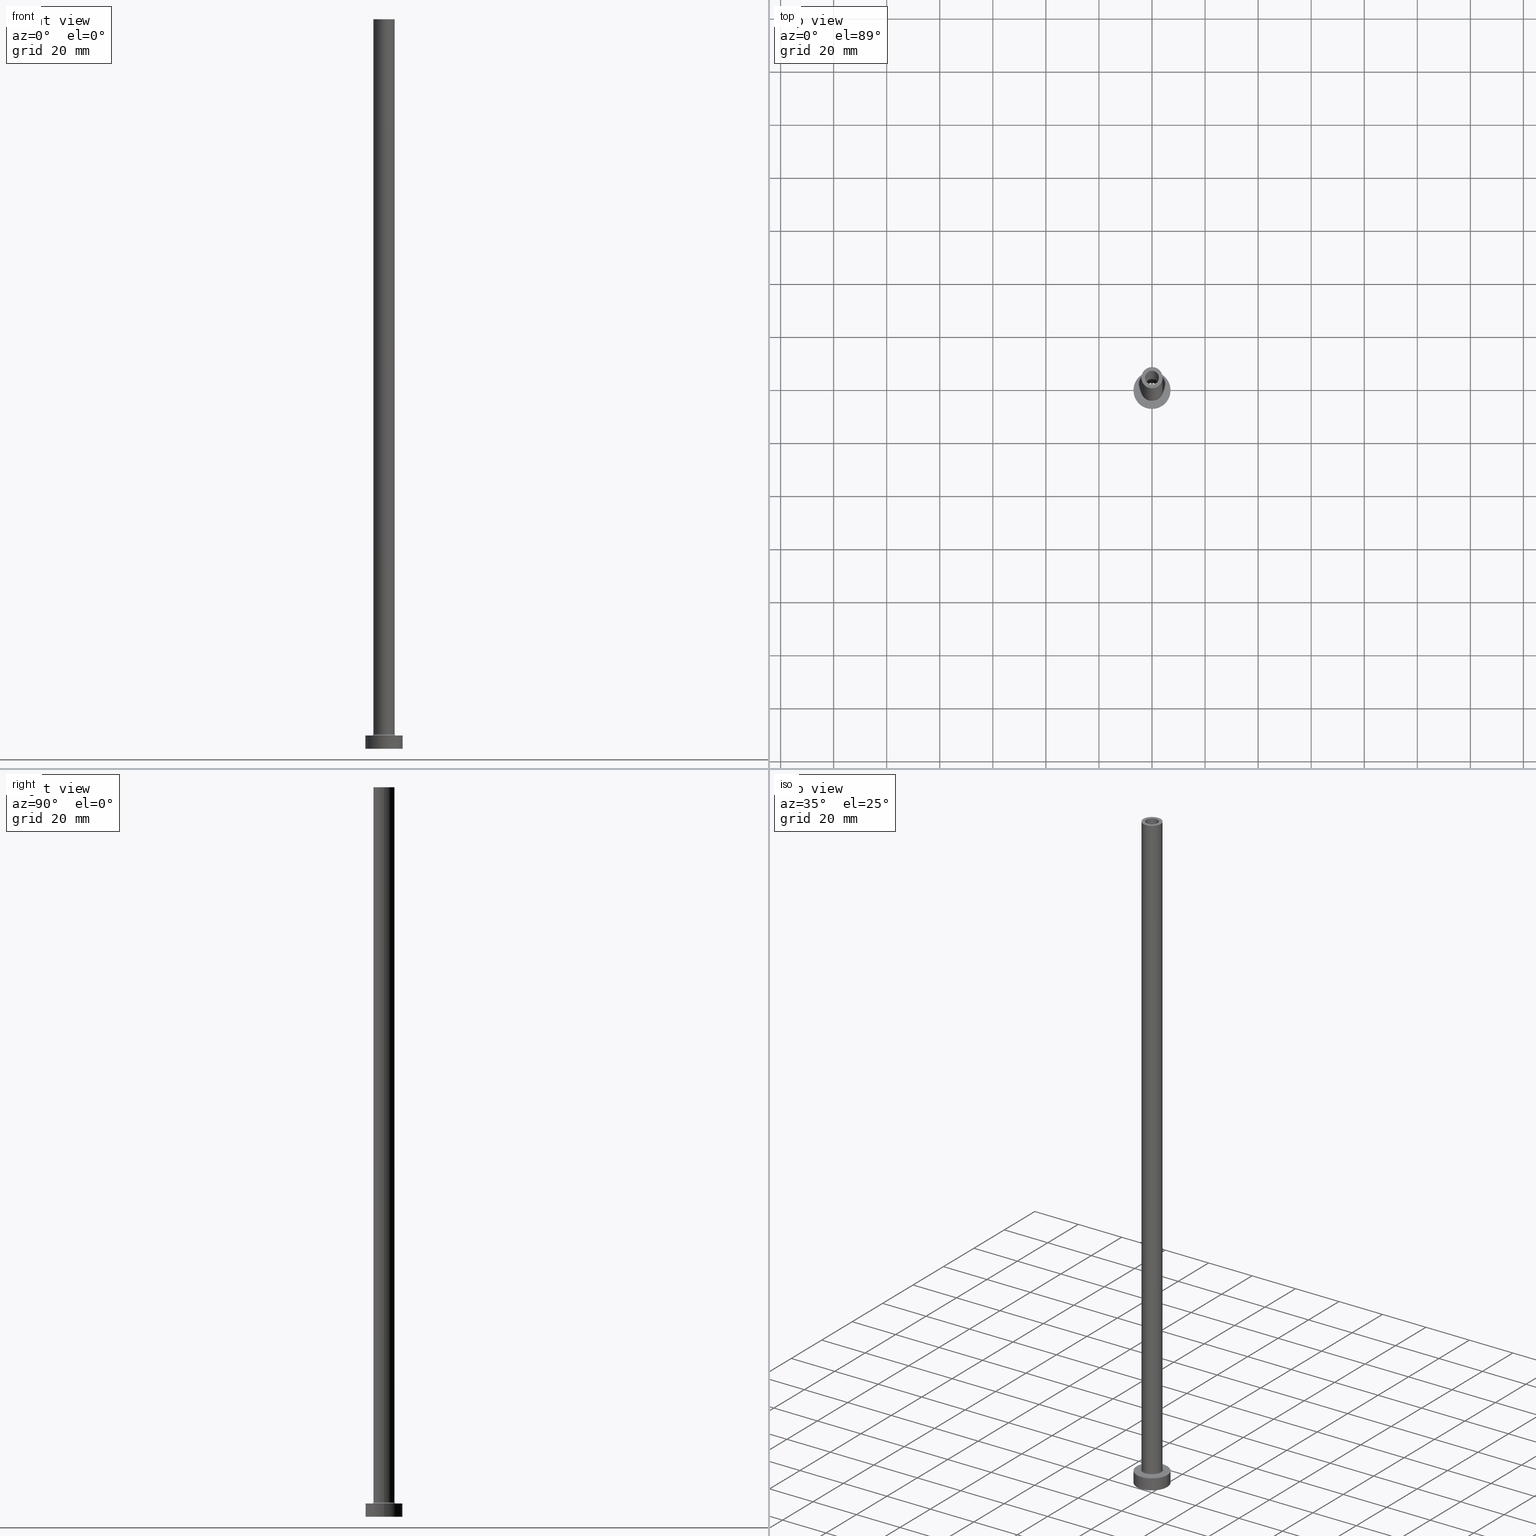
[diagram: canonical four-view strip — front | top / right | iso, engineering-drawing reading convention]
A machine part, canonical four-view strip (front | top / right | iso — engineering-drawing reading convention). The complete STEP part file that produces these views, byte-faithful:
ISO-10303-21;
HEADER;
FILE_DESCRIPTION (( 'STEP AP203' ),
    '1' );
FILE_NAME ('c31c.STEP',
    '2023-02-13T16:29:55',
    ( '' ),
    ( '' ),
    'SwSTEP 2.0',
    'SolidWorks 2019',
    '' );
FILE_SCHEMA (( 'CONFIG_CONTROL_DESIGN' ));
ENDSEC;

DATA;
#1 = CARTESIAN_POINT ( 'NONE',  ( 0.000000000000000000, 0.000000000000000000, 0.000000000000000000 ) ) ;
#2 = VERTEX_POINT ( 'NONE', #423 ) ;
#3 = DIRECTION ( 'NONE',  ( 0.000000000000000000, 0.000000000000000000, -1.000000000000000000 ) ) ;
#4 = CARTESIAN_POINT ( 'NONE',  ( -7.000000000000000000, 0.000000000000000000, 5.000000000000000000 ) ) ;
#5 = EDGE_CURVE ( 'NONE', #356, #18, #270, .T. ) ;
#6 = VERTEX_POINT ( 'NONE', #460 ) ;
#7 = DIRECTION ( 'NONE',  ( -1.000000000000000000, 0.000000000000000000, 0.000000000000000000 ) ) ;
#8 = ORIENTED_EDGE ( 'NONE', *, *, #402, .F. ) ;
#9 = EDGE_LOOP ( 'NONE', ( #355, #163, #395, #287 ) ) ;
#10 = AXIS2_PLACEMENT_3D ( 'NONE', #327, #81, #257 ) ;
#11 = DIRECTION ( 'NONE',  ( -0.000000000000000000, -0.000000000000000000, -1.000000000000000000 ) ) ;
#12 = EDGE_CURVE ( 'NONE', #133, #141, #131, .T. ) ;
#13 = DIRECTION ( 'NONE',  ( 1.000000000000000000, 0.000000000000000000, 0.000000000000000000 ) ) ;
#14 = CIRCLE ( 'NONE', #65, 7.000000000000000000 ) ;
#15 = ORIENTED_EDGE ( 'NONE', *, *, #212, .F. ) ;
#16 = COORDINATED_UNIVERSAL_TIME_OFFSET ( 1, 0, .AHEAD. ) ;
#17 = PERSON_AND_ORGANIZATION_ROLE ( 'design_supplier' ) ;
#18 = VERTEX_POINT ( 'NONE', #349 ) ;
#19 = AXIS2_PLACEMENT_3D ( 'NONE', #236, #238, #388 ) ;
#20 = DIRECTION ( 'NONE',  ( 0.000000000000000000, 0.000000000000000000, -1.000000000000000000 ) ) ;
#21 = EDGE_CURVE ( 'NONE', #133, #300, #72, .T. ) ;
#22 = APPROVAL_ROLE ( '' ) ;
#23 = APPROVAL ( #410, 'NEUR�EN�' ) ;
#24 = DIRECTION ( 'NONE',  ( -1.000000000000000000, 0.000000000000000000, 0.000000000000000000 ) ) ;
#25 = EDGE_LOOP ( 'NONE', ( #160, #104 ) ) ;
#26 = VECTOR ( 'NONE', #92, 1000.000000000000000 ) ;
#27 = EDGE_LOOP ( 'NONE', ( #431, #127, #316, #61 ) ) ;
#28 = FACE_OUTER_BOUND ( 'NONE', #449, .T. ) ;
#29 = FACE_OUTER_BOUND ( 'NONE', #302, .T. ) ;
#30 = CARTESIAN_POINT ( 'NONE',  ( 0.000000000000000000, 0.000000000000000000, 230.0000000000000284 ) ) ;
#31 = DIRECTION ( 'NONE',  ( -1.000000000000000000, 0.000000000000000000, 0.000000000000000000 ) ) ;
#32 = CYLINDRICAL_SURFACE ( 'NONE', #403, 2.750000000000000000 ) ;
#33 = DIRECTION ( 'NONE',  ( 0.000000000000000000, 0.000000000000000000, -1.000000000000000000 ) ) ;
#34 =( NAMED_UNIT ( * ) SI_UNIT ( $, .STERADIAN. ) SOLID_ANGLE_UNIT ( ) );
#35 = VERTEX_POINT ( 'NONE', #4 ) ;
#36 = ORIENTED_EDGE ( 'NONE', *, *, #398, .T. ) ;
#37 = SECURITY_CLASSIFICATION ( '', '', #306 ) ;
#38 = EDGE_LOOP ( 'NONE', ( #151, #219 ) ) ;
#39 = VERTEX_POINT ( 'NONE', #137 ) ;
#40 = EDGE_CURVE ( 'NONE', #167, #39, #428, .T. ) ;
#41 = CARTESIAN_POINT ( 'NONE',  ( 0.000000000000000000, 0.000000000000000000, 230.0000000000000284 ) ) ;
#42 = AXIS2_PLACEMENT_3D ( 'NONE', #41, #323, #263 ) ;
#43 = VECTOR ( 'NONE', #11, 1000.000000000000000 ) ;
#44 = CARTESIAN_POINT ( 'NONE',  ( 0.000000000000000000, 0.000000000000000000, 230.0000000000000284 ) ) ;
#45 = FACE_OUTER_BOUND ( 'NONE', #188, .T. ) ;
#46 = VERTEX_POINT ( 'NONE', #201 ) ;
#47 = DIRECTION ( 'NONE',  ( 1.000000000000000000, 0.000000000000000000, 0.000000000000000000 ) ) ;
#48 = AXIS2_PLACEMENT_3D ( 'NONE', #453, #347, #164 ) ;
#49 = APPROVAL_STATUS ( 'not_yet_approved' ) ;
#50 = VECTOR ( 'NONE', #20, 1000.000000000000000 ) ;
#51 = ORIENTED_EDGE ( 'NONE', *, *, #293, .F. ) ;
#52 = CARTESIAN_POINT ( 'NONE',  ( -4.000000000000000000, 0.000000000000000000, 5.500000000000005329 ) ) ;
#53 = EDGE_CURVE ( 'NONE', #173, #2, #14, .T. ) ;
#54 = ORIENTED_EDGE ( 'NONE', *, *, #339, .F. ) ;
#55 = LINE ( 'NONE', #196, #50 ) ;
#56 = VERTEX_POINT ( 'NONE', #62 ) ;
#57 = TOROIDAL_SURFACE ( 'NONE', #231, 4.500000000000000888, 0.5000000000000000000 ) ;
#58 = EDGE_CURVE ( 'NONE', #407, #2, #358, .T. ) ;
#59 = DIRECTION ( 'NONE',  ( 0.000000000000000000, 0.000000000000000000, 1.000000000000000000 ) ) ;
#60 = CARTESIAN_POINT ( 'NONE',  ( 0.000000000000000000, 0.000000000000000000, 275.0000000000000000 ) ) ;
#61 = ORIENTED_EDGE ( 'NONE', *, *, #53, .T. ) ;
#62 = CARTESIAN_POINT ( 'NONE',  ( -4.500000000000000888, 5.510910596163088569E-16, 5.000000000000002665 ) ) ;
#63 = DIRECTION ( 'NONE',  ( -0.000000000000000000, -0.000000000000000000, -1.000000000000000000 ) ) ;
#64 = EDGE_CURVE ( 'NONE', #300, #133, #399, .T. ) ;
#65 = AXIS2_PLACEMENT_3D ( 'NONE', #396, #69, #213 ) ;
#66 = ORIENTED_EDGE ( 'NONE', *, *, #40, .F. ) ;
#67 = ORIENTED_EDGE ( 'NONE', *, *, #212, .T. ) ;
#68 = CC_DESIGN_PERSON_AND_ORGANIZATION_ASSIGNMENT ( #197, #17, ( #435 ) ) ;
#69 = DIRECTION ( 'NONE',  ( 0.000000000000000000, 0.000000000000000000, 1.000000000000000000 ) ) ;
#70 = TOROIDAL_SURFACE ( 'NONE', #232, 4.500000000000000888, 0.5000000000000000000 ) ;
#71 = EDGE_LOOP ( 'NONE', ( #36, #246 ) ) ;
#72 = CIRCLE ( 'NONE', #292, 2.750000000000000000 ) ;
#73 = FACE_OUTER_BOUND ( 'NONE', #143, .T. ) ;
#74 = DIRECTION ( 'NONE',  ( 1.000000000000000000, 0.000000000000000000, 0.000000000000000000 ) ) ;
#75 = ADVANCED_FACE ( 'NONE', ( #87 ), #380, .F. ) ;
#76 = CIRCLE ( 'NONE', #136, 4.000000000000000000 ) ;
#77 = CC_DESIGN_APPROVAL ( #23, ( #435 ) ) ;
#78 = EDGE_CURVE ( 'NONE', #300, #333, #55, .T. ) ;
#79 = PRODUCT ( 'c31c', 'c31c', '', ( #353 ) ) ;
#80 = ORIENTED_EDGE ( 'NONE', *, *, #109, .T. ) ;
#81 = DIRECTION ( 'NONE',  ( -0.000000000000000000, -0.000000000000000000, -1.000000000000000000 ) ) ;
#82 = CARTESIAN_POINT ( 'NONE',  ( 0.000000000000000000, 0.000000000000000000, 230.0000000000000284 ) ) ;
#83 = AXIS2_PLACEMENT_3D ( 'NONE', #269, #297, #230 ) ;
#84 = CIRCLE ( 'NONE', #146, 0.5000000000000004441 ) ;
#85 = CALENDAR_DATE ( 2023, 13, 2 ) ;
#86 = ORIENTED_EDGE ( 'NONE', *, *, #21, .T. ) ;
#87 = FACE_OUTER_BOUND ( 'NONE', #9, .T. ) ;
#88 = ADVANCED_FACE ( 'NONE', ( #382, #198 ), #338, .T. ) ;
#89 = ORIENTED_EDGE ( 'NONE', *, *, #115, .F. ) ;
#90 = LOCAL_TIME ( 17, 29, 55.00000000000000000, #271 ) ;
#91 = ADVANCED_FACE ( 'NONE', ( #280, #45 ), #224, .F. ) ;
#92 = DIRECTION ( 'NONE',  ( -0.000000000000000000, -0.000000000000000000, -1.000000000000000000 ) ) ;
#93 = DIRECTION ( 'NONE',  ( 0.000000000000000000, 0.000000000000000000, 1.000000000000000000 ) ) ;
#94 = DIRECTION ( 'NONE',  ( 1.000000000000000000, 0.000000000000000000, 0.000000000000000000 ) ) ;
#95 = LINE ( 'NONE', #443, #123 ) ;
#96 = DIRECTION ( 'NONE',  ( 1.000000000000000000, 0.000000000000000000, 0.000000000000000000 ) ) ;
#97 = CARTESIAN_POINT ( 'NONE',  ( 2.750000000000000000, 3.367778697655221012E-16, 0.000000000000000000 ) ) ;
#98 = CARTESIAN_POINT ( 'NONE',  ( -4.000000000000000000, 0.000000000000000000, 275.0000000000000000 ) ) ;
#99 = AXIS2_PLACEMENT_3D ( 'NONE', #144, #455, #218 ) ;
#100 = CIRCLE ( 'NONE', #149, 0.5000000000000004441 ) ;
#101 = ORIENTED_EDGE ( 'NONE', *, *, #40, .T. ) ;
#102 = CARTESIAN_POINT ( 'NONE',  ( 0.000000000000000000, 0.000000000000000000, 230.0000000000000284 ) ) ;
#103 = MANIFOLD_SOLID_BREP ( 'Odebrat vysunut�m4', #229 ) ;
#104 = ORIENTED_EDGE ( 'NONE', *, *, #208, .T. ) ;
#105 = PRODUCT_DEFINITION ( 'NEZN�M�', '', #435, #110 ) ;
#106 = AXIS2_PLACEMENT_3D ( 'NONE', #264, #259, #401 ) ;
#107 = ORIENTED_EDGE ( 'NONE', *, *, #344, .T. ) ;
#108 = AXIS2_PLACEMENT_3D ( 'NONE', #376, #442, #447 ) ;
#109 = EDGE_CURVE ( 'NONE', #217, #6, #408, .T. ) ;
#110 = DESIGN_CONTEXT ( 'detailed design', #210, 'design' ) ;
#111 =( NAMED_UNIT ( * ) PLANE_ANGLE_UNIT ( ) SI_UNIT ( $, .RADIAN. ) );
#112 = CARTESIAN_POINT ( 'NONE',  ( -7.000000000000000000, 0.000000000000000000, 5.000000000000000000 ) ) ;
#113 = PERSON_AND_ORGANIZATION ( #156, #242 ) ;
#114 = VECTOR ( 'NONE', #308, 1000.000000000000000 ) ;
#115 = EDGE_CURVE ( 'NONE', #2, #173, #157, .T. ) ;
#116 = ADVANCED_FACE ( 'NONE', ( #341 ), #351, .T. ) ;
#117 = DIRECTION ( 'NONE',  ( -1.000000000000000000, 1.224646799147351482E-16, 0.000000000000000000 ) ) ;
#118 = DIRECTION ( 'NONE',  ( 0.000000000000000000, 0.000000000000000000, 1.000000000000000000 ) ) ;
#119 = COORDINATED_UNIVERSAL_TIME_OFFSET ( 1, 0, .AHEAD. ) ;
#120 = CARTESIAN_POINT ( 'NONE',  ( 7.000000000000000000, 8.572527594031473190E-16, 5.000000000000000000 ) ) ;
#121 = ADVANCED_FACE ( 'NONE', ( #28 ), #70, .F. ) ;
#122 = AXIS2_PLACEMENT_3D ( 'NONE', #296, #118, #253 ) ;
#123 = VECTOR ( 'NONE', #448, 1000.000000000000000 ) ;
#124 = PERSON_AND_ORGANIZATION_ROLE ( 'creator' ) ;
#125 = ORIENTED_EDGE ( 'NONE', *, *, #172, .T. ) ;
#126 = CC_DESIGN_PERSON_AND_ORGANIZATION_ASSIGNMENT ( #369, #124, ( #435 ) ) ;
#127 = ORIENTED_EDGE ( 'NONE', *, *, #398, .F. ) ;
#128 = CARTESIAN_POINT ( 'NONE',  ( 0.000000000000000000, 0.000000000000000000, 5.000000000000000000 ) ) ;
#129 = CARTESIAN_POINT ( 'NONE',  ( 0.000000000000000000, 0.000000000000000000, 275.0000000000000000 ) ) ;
#130 = CARTESIAN_POINT ( 'NONE',  ( 0.000000000000000000, 0.000000000000000000, 237.7781745930520572 ) ) ;
#131 = LINE ( 'NONE', #421, #374 ) ;
#132 = FACE_OUTER_BOUND ( 'NONE', #207, .T. ) ;
#133 = VERTEX_POINT ( 'NONE', #314 ) ;
#134 = CARTESIAN_POINT ( 'NONE',  ( 0.000000000000000000, 0.000000000000000000, 275.0000000000000000 ) ) ;
#135 = ORIENTED_EDGE ( 'NONE', *, *, #58, .T. ) ;
#136 = AXIS2_PLACEMENT_3D ( 'NONE', #367, #329, #227 ) ;
#137 = CARTESIAN_POINT ( 'NONE',  ( 4.000000000000000000, 4.898587196589412829E-16, 5.500000000000005329 ) ) ;
#138 = DIRECTION ( 'NONE',  ( 1.000000000000000000, 0.000000000000000000, 0.000000000000000000 ) ) ;
#139 = ORIENTED_EDGE ( 'NONE', *, *, #109, .F. ) ;
#140 = ORIENTED_EDGE ( 'NONE', *, *, #381, .F. ) ;
#141 = VERTEX_POINT ( 'NONE', #97 ) ;
#142 = CC_DESIGN_DATE_AND_TIME_ASSIGNMENT ( #440, #451, ( #37 ) ) ;
#143 = EDGE_LOOP ( 'NONE', ( #307, #101, #389, #54 ) ) ;
#144 = CARTESIAN_POINT ( 'NONE',  ( 0.000000000000000000, 0.000000000000000000, 5.000000000000000000 ) ) ;
#145 = AXIS2_PLACEMENT_3D ( 'NONE', #1, #237, #458 ) ;
#146 = AXIS2_PLACEMENT_3D ( 'NONE', #290, #429, #117 ) ;
#147 = CYLINDRICAL_SURFACE ( 'NONE', #10, 4.000000000000000000 ) ;
#148 = ADVANCED_FACE ( 'NONE', ( #203, #132 ), #170, .F. ) ;
#149 = AXIS2_PLACEMENT_3D ( 'NONE', #176, #390, #178 ) ;
#150 = CARTESIAN_POINT ( 'NONE',  ( 0.000000000000000000, 0.000000000000000000, 5.000000000000000000 ) ) ;
#151 = ORIENTED_EDGE ( 'NONE', *, *, #439, .F. ) ;
#152 = DIRECTION ( 'NONE',  ( 0.000000000000000000, 0.000000000000000000, 1.000000000000000000 ) ) ;
#153 = EDGE_CURVE ( 'NONE', #39, #425, #418, .T. ) ;
#154 = ORIENTED_EDGE ( 'NONE', *, *, #344, .F. ) ;
#155 = DIRECTION ( 'NONE',  ( 1.000000000000000000, 0.000000000000000000, 0.000000000000000000 ) ) ;
#156 = PERSON ( 'NEUR�EN�', 'NEUR�EN�', 'NEUR�EN�', ('NEUR�EN�'), ('NEUR�EN�'), ('NEUR�EN�') ) ;
#157 = CIRCLE ( 'NONE', #122, 7.000000000000000000 ) ;
#158 = CIRCLE ( 'NONE', #446, 2.750000000000000000 ) ;
#159 = PERSON_AND_ORGANIZATION ( #156, #242 ) ;
#160 = ORIENTED_EDGE ( 'NONE', *, *, #5, .T. ) ;
#161 = ADVANCED_FACE ( 'NONE', ( #456 ), #199, .F. ) ;
#162 = DIRECTION ( 'NONE',  ( 1.000000000000000000, 0.000000000000000000, 0.000000000000000000 ) ) ;
#163 = ORIENTED_EDGE ( 'NONE', *, *, #402, .T. ) ;
#164 = DIRECTION ( 'NONE',  ( 1.000000000000000000, 0.000000000000000000, 0.000000000000000000 ) ) ;
#165 = DIRECTION ( 'NONE',  ( 1.000000000000000000, 0.000000000000000000, 0.000000000000000000 ) ) ;
#166 = CARTESIAN_POINT ( 'NONE',  ( 4.000000000000000000, 4.898587196589412829E-16, 275.0000000000000000 ) ) ;
#167 = VERTEX_POINT ( 'NONE', #166 ) ;
#168 = AXIS2_PLACEMENT_3D ( 'NONE', #60, #93, #391 ) ;
#169 = DIRECTION ( 'NONE',  ( 1.000000000000000000, 0.000000000000000000, 0.000000000000000000 ) ) ;
#170 = PLANE ( 'NONE',  #392 ) ;
#171 = DIRECTION ( 'NONE',  ( 0.000000000000000000, 0.000000000000000000, -1.000000000000000000 ) ) ;
#172 = EDGE_CURVE ( 'NONE', #425, #56, #84, .T. ) ;
#173 = VERTEX_POINT ( 'NONE', #417 ) ;
#174 = CARTESIAN_POINT ( 'NONE',  ( 2.600000000000000089, 3.184081677783117698E-16, 275.0000000000000000 ) ) ;
#175 = DIRECTION ( 'NONE',  ( 0.000000000000000000, 0.000000000000000000, 1.000000000000000000 ) ) ;
#176 = CARTESIAN_POINT ( 'NONE',  ( 4.500000000000000888, 0.000000000000000000, 5.500000000000005329 ) ) ;
#177 = ORIENTED_EDGE ( 'NONE', *, *, #190, .T. ) ;
#178 = DIRECTION ( 'NONE',  ( 0.000000000000000000, 0.000000000000000000, -1.000000000000000000 ) ) ;
#179 = APPROVAL_PERSON_ORGANIZATION ( #159, #23, #414 ) ;
#180 = CARTESIAN_POINT ( 'NONE',  ( 7.000000000000000000, 8.572527594031473190E-16, 5.000000000000000000 ) ) ;
#181 = ORIENTED_EDGE ( 'NONE', *, *, #153, .F. ) ;
#182 = ORIENTED_EDGE ( 'NONE', *, *, #366, .T. ) ;
#183 = ADVANCED_BREP_SHAPE_REPRESENTATION ( 'c31c', ( #103, #145 ), #313 ) ;
#184 = AXIS2_PLACEMENT_3D ( 'NONE', #275, #235, #317 ) ;
#185 = CIRCLE ( 'NONE', #168, 4.000000000000000000 ) ;
#186 = APPROVAL_STATUS ( 'not_yet_approved' ) ;
#187 = CALENDAR_DATE ( 2023, 13, 2 ) ;
#188 = EDGE_LOOP ( 'NONE', ( #322, #400 ) ) ;
#189 = CIRCLE ( 'NONE', #48, 4.000000000000000000 ) ;
#190 = EDGE_CURVE ( 'NONE', #6, #356, #262, .T. ) ;
#191 = DATE_TIME_ROLE ( 'creation_date' ) ;
#192 = DIRECTION ( 'NONE',  ( 0.000000000000000000, 0.000000000000000000, 1.000000000000000000 ) ) ;
#193 = CARTESIAN_POINT ( 'NONE',  ( 0.000000000000000000, 0.000000000000000000, 0.000000000000000000 ) ) ;
#194 = ADVANCED_FACE ( 'NONE', ( #247, #211 ), #361, .T. ) ;
#195 = ORIENTED_EDGE ( 'NONE', *, *, #331, .T. ) ;
#196 = CARTESIAN_POINT ( 'NONE',  ( -2.750000000000000000, 0.000000000000000000, 237.7781745930520572 ) ) ;
#197 = PERSON_AND_ORGANIZATION ( #156, #242 ) ;
#198 = FACE_OUTER_BOUND ( 'NONE', #319, .T. ) ;
#199 = CYLINDRICAL_SURFACE ( 'NONE', #348, 2.600000000000000089 ) ;
#200 = ORIENTED_EDGE ( 'NONE', *, *, #221, .T. ) ;
#201 = CARTESIAN_POINT ( 'NONE',  ( 4.500000000000000888, 0.000000000000000000, 5.000000000000002665 ) ) ;
#202 = ADVANCED_FACE ( 'NONE', ( #324 ), #223, .T. ) ;
#203 = FACE_BOUND ( 'NONE', #38, .T. ) ;
#204 = CYLINDRICAL_SURFACE ( 'NONE', #291, 2.750000000000000000 ) ;
#205 = FACE_OUTER_BOUND ( 'NONE', #311, .T. ) ;
#206 = APPROVAL_PERSON_ORGANIZATION ( #268, #450, #22 ) ;
#207 = EDGE_LOOP ( 'NONE', ( #289, #89 ) ) ;
#208 = EDGE_CURVE ( 'NONE', #18, #356, #426, .T. ) ;
#209 = ORIENTED_EDGE ( 'NONE', *, *, #78, .T. ) ;
#210 = APPLICATION_CONTEXT ( 'configuration controlled 3d designs of mechanical parts and assemblies' ) ;
#211 = FACE_OUTER_BOUND ( 'NONE', #71, .T. ) ;
#212 = EDGE_CURVE ( 'NONE', #46, #56, #372, .T. ) ;
#213 = DIRECTION ( 'NONE',  ( 1.000000000000000000, 0.000000000000000000, 0.000000000000000000 ) ) ;
#214 = ORIENTED_EDGE ( 'NONE', *, *, #172, .F. ) ;
#215 = CC_DESIGN_SECURITY_CLASSIFICATION ( #37, ( #435 ) ) ;
#216 = DIRECTION ( 'NONE',  ( 1.000000000000000000, 0.000000000000000000, 0.000000000000000000 ) ) ;
#217 = VERTEX_POINT ( 'NONE', #174 ) ;
#218 = DIRECTION ( 'NONE',  ( 1.000000000000000000, 0.000000000000000000, -0.000000000000000000 ) ) ;
#219 = ORIENTED_EDGE ( 'NONE', *, *, #444, .F. ) ;
#220 = PERSON_AND_ORGANIZATION ( #156, #242 ) ;
#221 = EDGE_CURVE ( 'NONE', #39, #46, #100, .T. ) ;
#222 = APPROVAL_PERSON_ORGANIZATION ( #220, #240, #368 ) ;
#223 = CYLINDRICAL_SURFACE ( 'NONE', #106, 7.000000000000000000 ) ;
#224 = PLANE ( 'NONE',  #42 ) ;
#225 = CALENDAR_DATE ( 2023, 13, 2 ) ;
#226 = CC_DESIGN_PERSON_AND_ORGANIZATION_ASSIGNMENT ( #113, #265, ( #79 ) ) ;
#227 = DIRECTION ( 'NONE',  ( 1.000000000000000000, 0.000000000000000000, 0.000000000000000000 ) ) ;
#228 = PERSON_AND_ORGANIZATION_ROLE ( 'creator' ) ;
#229 = CLOSED_SHELL ( 'NONE', ( #75, #282, #434, #379, #310, #202, #194, #148, #116, #88, #121, #256, #91, #161 ) ) ;
#230 = DIRECTION ( 'NONE',  ( 1.000000000000000000, 0.000000000000000000, 0.000000000000000000 ) ) ;
#231 = AXIS2_PLACEMENT_3D ( 'NONE', #437, #152, #47 ) ;
#232 = AXIS2_PLACEMENT_3D ( 'NONE', #284, #59, #162 ) ;
#233 = DATE_AND_TIME ( #85, #90 ) ;
#234 = LOCAL_TIME ( 17, 29, 55.00000000000000000, #298 ) ;
#235 = DIRECTION ( 'NONE',  ( 0.000000000000000000, 0.000000000000000000, 1.000000000000000000 ) ) ;
#236 = CARTESIAN_POINT ( 'NONE',  ( 0.000000000000000000, 0.000000000000000000, 5.000000000000000000 ) ) ;
#237 = DIRECTION ( 'NONE',  ( 0.000000000000000000, 0.000000000000000000, 1.000000000000000000 ) ) ;
#238 = DIRECTION ( 'NONE',  ( -0.000000000000000000, -0.000000000000000000, -1.000000000000000000 ) ) ;
#239 = CARTESIAN_POINT ( 'NONE',  ( 4.000000000000000000, 4.898587196589412829E-16, 275.0000000000000000 ) ) ;
#240 = APPROVAL ( #186, 'NEUR�EN�' ) ;
#241 = DIRECTION ( 'NONE',  ( 1.000000000000000000, 0.000000000000000000, 0.000000000000000000 ) ) ;
#242 = ORGANIZATION ( 'NEUR�EN�', 'NEUR�EN�', '' ) ;
#243 = ORIENTED_EDGE ( 'NONE', *, *, #12, .F. ) ;
#244 = EDGE_CURVE ( 'NONE', #6, #217, #335, .T. ) ;
#245 = DIRECTION ( 'NONE',  ( -0.000000000000000000, -0.000000000000000000, -1.000000000000000000 ) ) ;
#246 = ORIENTED_EDGE ( 'NONE', *, *, #260, .T. ) ;
#247 = FACE_BOUND ( 'NONE', #405, .T. ) ;
#248 = ORIENTED_EDGE ( 'NONE', *, *, #12, .T. ) ;
#249 = DIRECTION ( 'NONE',  ( 0.000000000000000000, 0.000000000000000000, 1.000000000000000000 ) ) ;
#250 = CARTESIAN_POINT ( 'NONE',  ( -2.600000000000000089, 0.000000000000000000, 275.0000000000000000 ) ) ;
#251 = AXIS2_PLACEMENT_3D ( 'NONE', #309, #454, #278 ) ;
#252 = AXIS2_PLACEMENT_3D ( 'NONE', #357, #393, #165 ) ;
#253 = DIRECTION ( 'NONE',  ( 1.000000000000000000, 0.000000000000000000, 0.000000000000000000 ) ) ;
#254 = CC_DESIGN_PERSON_AND_ORGANIZATION_ASSIGNMENT ( #336, #406, ( #37 ) ) ;
#255 = DIRECTION ( 'NONE',  ( 0.000000000000000000, 0.000000000000000000, 1.000000000000000000 ) ) ;
#256 = ADVANCED_FACE ( 'NONE', ( #29 ), #204, .F. ) ;
#257 = DIRECTION ( 'NONE',  ( -1.000000000000000000, 0.000000000000000000, 0.000000000000000000 ) ) ;
#258 = APPLICATION_PROTOCOL_DEFINITION ( 'international standard', 'config_control_design', 1994, #210 ) ;
#259 = DIRECTION ( 'NONE',  ( -0.000000000000000000, -0.000000000000000000, -1.000000000000000000 ) ) ;
#260 = EDGE_CURVE ( 'NONE', #407, #35, #304, .T. ) ;
#261 = AXIS2_PLACEMENT_3D ( 'NONE', #150, #255, #216 ) ;
#262 = LINE ( 'NONE', #250, #279 ) ;
#263 = DIRECTION ( 'NONE',  ( 1.000000000000000000, 0.000000000000000000, -0.000000000000000000 ) ) ;
#264 = CARTESIAN_POINT ( 'NONE',  ( 0.000000000000000000, 0.000000000000000000, 5.000000000000000000 ) ) ;
#265 = PERSON_AND_ORGANIZATION_ROLE ( 'design_owner' ) ;
#266 = CARTESIAN_POINT ( 'NONE',  ( 0.000000000000000000, 0.000000000000000000, 5.000000000000000000 ) ) ;
#267 = CALENDAR_DATE ( 2023, 13, 2 ) ;
#268 = PERSON_AND_ORGANIZATION ( #156, #242 ) ;
#269 = CARTESIAN_POINT ( 'NONE',  ( 0.000000000000000000, 0.000000000000000000, 0.000000000000000000 ) ) ;
#270 = CIRCLE ( 'NONE', #281, 2.600000000000000089 ) ;
#271 = COORDINATED_UNIVERSAL_TIME_OFFSET ( 1, 0, .AHEAD. ) ;
#272 = ORIENTED_EDGE ( 'NONE', *, *, #339, .T. ) ;
#273 = CALENDAR_DATE ( 2023, 13, 2 ) ;
#274 = ORIENTED_EDGE ( 'NONE', *, *, #221, .F. ) ;
#275 = CARTESIAN_POINT ( 'NONE',  ( 0.000000000000000000, 0.000000000000000000, 5.500000000000005329 ) ) ;
#276 = ORIENTED_EDGE ( 'NONE', *, *, #208, .F. ) ;
#277 = DIRECTION ( 'NONE',  ( -0.000000000000000000, -0.000000000000000000, -1.000000000000000000 ) ) ;
#278 = DIRECTION ( 'NONE',  ( 1.000000000000000000, 0.000000000000000000, -0.000000000000000000 ) ) ;
#279 = VECTOR ( 'NONE', #3, 1000.000000000000000 ) ;
#280 = FACE_BOUND ( 'NONE', #25, .T. ) ;
#281 = AXIS2_PLACEMENT_3D ( 'NONE', #102, #345, #169 ) ;
#282 = ADVANCED_FACE ( 'NONE', ( #457 ), #32, .F. ) ;
#283 = DIRECTION ( 'NONE',  ( -0.000000000000000000, -0.000000000000000000, -1.000000000000000000 ) ) ;
#284 = CARTESIAN_POINT ( 'NONE',  ( 0.000000000000000000, 0.000000000000000000, 5.500000000000005329 ) ) ;
#285 = CARTESIAN_POINT ( 'NONE',  ( 0.000000000000000000, 0.000000000000000000, 275.0000000000000000 ) ) ;
#286 = ORIENTED_EDGE ( 'NONE', *, *, #260, .F. ) ;
#287 = ORIENTED_EDGE ( 'NONE', *, *, #190, .F. ) ;
#288 = CC_DESIGN_APPROVAL ( #240, ( #105 ) ) ;
#289 = ORIENTED_EDGE ( 'NONE', *, *, #53, .F. ) ;
#290 = CARTESIAN_POINT ( 'NONE',  ( -4.500000000000000888, 5.510910596163089556E-16, 5.500000000000005329 ) ) ;
#291 = AXIS2_PLACEMENT_3D ( 'NONE', #427, #352, #7 ) ;
#292 = AXIS2_PLACEMENT_3D ( 'NONE', #30, #175, #94 ) ;
#293 = EDGE_CURVE ( 'NONE', #411, #167, #185, .T. ) ;
#294 = LOCAL_TIME ( 17, 29, 55.00000000000000000, #438 ) ;
#295 = UNCERTAINTY_MEASURE_WITH_UNIT (LENGTH_MEASURE( 1.000000000000000082E-05 ), #350, 'distance_accuracy_value', 'NONE');
#296 = CARTESIAN_POINT ( 'NONE',  ( 0.000000000000000000, 0.000000000000000000, 0.000000000000000000 ) ) ;
#297 = DIRECTION ( 'NONE',  ( -0.000000000000000000, -0.000000000000000000, -1.000000000000000000 ) ) ;
#298 = COORDINATED_UNIVERSAL_TIME_OFFSET ( 1, 0, .AHEAD. ) ;
#299 = APPROVAL_DATE_TIME ( #233, #450 ) ;
#300 = VERTEX_POINT ( 'NONE', #420 ) ;
#301 = APPROVAL_DATE_TIME ( #371, #240 ) ;
#302 = EDGE_LOOP ( 'NONE', ( #243, #86, #209, #320 ) ) ;
#303 = FACE_OUTER_BOUND ( 'NONE', #342, .T. ) ;
#304 = CIRCLE ( 'NONE', #252, 7.000000000000000000 ) ;
#305 = ORIENTED_EDGE ( 'NONE', *, *, #78, .F. ) ;
#306 = SECURITY_CLASSIFICATION_LEVEL ( 'unclassified' ) ;
#307 = ORIENTED_EDGE ( 'NONE', *, *, #331, .F. ) ;
#308 = DIRECTION ( 'NONE',  ( -0.000000000000000000, -0.000000000000000000, -1.000000000000000000 ) ) ;
#309 = CARTESIAN_POINT ( 'NONE',  ( 0.000000000000000000, 0.000000000000000000, 275.0000000000000000 ) ) ;
#310 = ADVANCED_FACE ( 'NONE', ( #205 ), #385, .T. ) ;
#311 = EDGE_LOOP ( 'NONE', ( #286, #135, #397, #140 ) ) ;
#312 = AXIS2_PLACEMENT_3D ( 'NONE', #44, #249, #74 ) ;
#313 =( GEOMETRIC_REPRESENTATION_CONTEXT ( 3 ) GLOBAL_UNCERTAINTY_ASSIGNED_CONTEXT ( ( #295 ) ) GLOBAL_UNIT_ASSIGNED_CONTEXT ( ( #350, #111, #34 ) ) REPRESENTATION_CONTEXT ( 'NONE', 'WORKASPACE' ) );
#314 = CARTESIAN_POINT ( 'NONE',  ( 2.750000000000000000, 3.367778697655221012E-16, 230.0000000000000284 ) ) ;
#315 = DIRECTION ( 'NONE',  ( 0.000000000000000000, 0.000000000000000000, 1.000000000000000000 ) ) ;
#316 = ORIENTED_EDGE ( 'NONE', *, *, #381, .T. ) ;
#317 = DIRECTION ( 'NONE',  ( 1.000000000000000000, 0.000000000000000000, 0.000000000000000000 ) ) ;
#318 = APPLICATION_PROTOCOL_DEFINITION ( 'international standard', 'config_control_design', 1994, #362 ) ;
#319 = EDGE_LOOP ( 'NONE', ( #415, #195 ) ) ;
#320 = ORIENTED_EDGE ( 'NONE', *, *, #439, .T. ) ;
#321 = CC_DESIGN_DATE_AND_TIME_ASSIGNMENT ( #436, #191, ( #105 ) ) ;
#322 = ORIENTED_EDGE ( 'NONE', *, *, #64, .F. ) ;
#323 = DIRECTION ( 'NONE',  ( 0.000000000000000000, 0.000000000000000000, 1.000000000000000000 ) ) ;
#324 = FACE_OUTER_BOUND ( 'NONE', #27, .T. ) ;
#325 = DIRECTION ( 'NONE',  ( 0.000000000000000000, 0.000000000000000000, 1.000000000000000000 ) ) ;
#326 = VECTOR ( 'NONE', #245, 1000.000000000000000 ) ;
#327 = CARTESIAN_POINT ( 'NONE',  ( 0.000000000000000000, 0.000000000000000000, 275.0000000000000000 ) ) ;
#328 = PERSON_AND_ORGANIZATION ( #156, #242 ) ;
#329 = DIRECTION ( 'NONE',  ( 0.000000000000000000, 0.000000000000000000, 1.000000000000000000 ) ) ;
#330 = APPROVAL_DATE_TIME ( #445, #23 ) ;
#331 = EDGE_CURVE ( 'NONE', #167, #411, #189, .T. ) ;
#332 = PRODUCT_DEFINITION_SHAPE ( 'NONE', 'NONE',  #105 ) ;
#333 = VERTEX_POINT ( 'NONE', #343 ) ;
#334 = CIRCLE ( 'NONE', #432, 4.500000000000000888 ) ;
#335 = CIRCLE ( 'NONE', #419, 2.600000000000000089 ) ;
#336 = PERSON_AND_ORGANIZATION ( #156, #242 ) ;
#337 = EDGE_LOOP ( 'NONE', ( #8, #80, #177, #276 ) ) ;
#338 = PLANE ( 'NONE',  #251 ) ;
#339 = EDGE_CURVE ( 'NONE', #411, #425, #424, .T. ) ;
#340 = CARTESIAN_POINT ( 'NONE',  ( 0.000000000000000000, 0.000000000000000000, 0.000000000000000000 ) ) ;
#341 = FACE_OUTER_BOUND ( 'NONE', #370, .T. ) ;
#342 = EDGE_LOOP ( 'NONE', ( #452, #125, #15, #274 ) ) ;
#343 = CARTESIAN_POINT ( 'NONE',  ( -2.750000000000000000, 0.000000000000000000, 0.000000000000000000 ) ) ;
#344 = EDGE_CURVE ( 'NONE', #56, #46, #334, .T. ) ;
#345 = DIRECTION ( 'NONE',  ( 0.000000000000000000, 0.000000000000000000, 1.000000000000000000 ) ) ;
#346 = CIRCLE ( 'NONE', #83, 2.750000000000000000 ) ;
#347 = DIRECTION ( 'NONE',  ( 0.000000000000000000, 0.000000000000000000, 1.000000000000000000 ) ) ;
#348 = AXIS2_PLACEMENT_3D ( 'NONE', #129, #386, #24 ) ;
#349 = CARTESIAN_POINT ( 'NONE',  ( 2.600000000000000089, 3.184081677783117698E-16, 230.0000000000000284 ) ) ;
#350 =( LENGTH_UNIT ( ) NAMED_UNIT ( * ) SI_UNIT ( .MILLI., .METRE. ) );
#351 = CYLINDRICAL_SURFACE ( 'NONE', #459, 4.000000000000000000 ) ;
#352 = DIRECTION ( 'NONE',  ( 0.000000000000000000, 0.000000000000000000, -1.000000000000000000 ) ) ;
#353 = MECHANICAL_CONTEXT ( 'NONE', #362, 'mechanical' ) ;
#354 = PRODUCT_RELATED_PRODUCT_CATEGORY ( 'detail', '', ( #79 ) ) ;
#355 = ORIENTED_EDGE ( 'NONE', *, *, #244, .T. ) ;
#356 = VERTEX_POINT ( 'NONE', #359 ) ;
#357 = CARTESIAN_POINT ( 'NONE',  ( 0.000000000000000000, 0.000000000000000000, 5.000000000000000000 ) ) ;
#358 = LINE ( 'NONE', #180, #26 ) ;
#359 = CARTESIAN_POINT ( 'NONE',  ( -2.600000000000000089, 0.000000000000000000, 230.0000000000000284 ) ) ;
#360 = CC_DESIGN_APPROVAL ( #450, ( #37 ) ) ;
#361 = PLANE ( 'NONE',  #99 ) ;
#362 = APPLICATION_CONTEXT ( 'configuration controlled 3d designs of mechanical parts and assemblies' ) ;
#363 = CC_DESIGN_PERSON_AND_ORGANIZATION_ASSIGNMENT ( #328, #228, ( #105 ) ) ;
#364 = ORIENTED_EDGE ( 'NONE', *, *, #244, .F. ) ;
#365 = LINE ( 'NONE', #112, #43 ) ;
#366 = EDGE_CURVE ( 'NONE', #425, #39, #76, .T. ) ;
#367 = CARTESIAN_POINT ( 'NONE',  ( 0.000000000000000000, 0.000000000000000000, 5.500000000000005329 ) ) ;
#368 = APPROVAL_ROLE ( '' ) ;
#369 = PERSON_AND_ORGANIZATION ( #156, #242 ) ;
#370 = EDGE_LOOP ( 'NONE', ( #66, #51, #272, #182 ) ) ;
#371 = DATE_AND_TIME ( #267, #383 ) ;
#372 = CIRCLE ( 'NONE', #461, 4.500000000000000888 ) ;
#373 = CIRCLE ( 'NONE', #261, 7.000000000000000000 ) ;
#374 = VECTOR ( 'NONE', #33, 1000.000000000000000 ) ;
#375 = EDGE_LOOP ( 'NONE', ( #394, #248, #412, #305 ) ) ;
#376 = CARTESIAN_POINT ( 'NONE',  ( 0.000000000000000000, 0.000000000000000000, 275.0000000000000000 ) ) ;
#377 = CARTESIAN_POINT ( 'NONE',  ( -4.000000000000000000, 0.000000000000000000, 275.0000000000000000 ) ) ;
#378 = SHAPE_DEFINITION_REPRESENTATION ( #332, #183 ) ;
#379 = ADVANCED_FACE ( 'NONE', ( #73 ), #147, .T. ) ;
#380 = CYLINDRICAL_SURFACE ( 'NONE', #108, 2.600000000000000089 ) ;
#381 = EDGE_CURVE ( 'NONE', #35, #173, #365, .T. ) ;
#382 = FACE_BOUND ( 'NONE', #441, .T. ) ;
#383 = LOCAL_TIME ( 17, 29, 55.00000000000000000, #119 ) ;
#384 = DIRECTION ( 'NONE',  ( 1.000000000000000000, 0.000000000000000000, -0.000000000000000000 ) ) ;
#385 = CYLINDRICAL_SURFACE ( 'NONE', #19, 7.000000000000000000 ) ;
#386 = DIRECTION ( 'NONE',  ( 0.000000000000000000, 0.000000000000000000, -1.000000000000000000 ) ) ;
#387 = DIRECTION ( 'NONE',  ( -1.000000000000000000, 0.000000000000000000, 0.000000000000000000 ) ) ;
#388 = DIRECTION ( 'NONE',  ( -1.000000000000000000, 0.000000000000000000, 0.000000000000000000 ) ) ;
#389 = ORIENTED_EDGE ( 'NONE', *, *, #153, .T. ) ;
#390 = DIRECTION ( 'NONE',  ( 0.000000000000000000, -1.000000000000000000, 0.000000000000000000 ) ) ;
#391 = DIRECTION ( 'NONE',  ( 1.000000000000000000, 0.000000000000000000, 0.000000000000000000 ) ) ;
#392 = AXIS2_PLACEMENT_3D ( 'NONE', #340, #422, #384 ) ;
#393 = DIRECTION ( 'NONE',  ( 0.000000000000000000, 0.000000000000000000, 1.000000000000000000 ) ) ;
#394 = ORIENTED_EDGE ( 'NONE', *, *, #64, .T. ) ;
#395 = ORIENTED_EDGE ( 'NONE', *, *, #5, .F. ) ;
#396 = CARTESIAN_POINT ( 'NONE',  ( 0.000000000000000000, 0.000000000000000000, 0.000000000000000000 ) ) ;
#397 = ORIENTED_EDGE ( 'NONE', *, *, #115, .T. ) ;
#398 = EDGE_CURVE ( 'NONE', #35, #407, #373, .T. ) ;
#399 = CIRCLE ( 'NONE', #430, 2.750000000000000000 ) ;
#400 = ORIENTED_EDGE ( 'NONE', *, *, #21, .F. ) ;
#401 = DIRECTION ( 'NONE',  ( -1.000000000000000000, 0.000000000000000000, 0.000000000000000000 ) ) ;
#402 = EDGE_CURVE ( 'NONE', #217, #18, #95, .T. ) ;
#403 = AXIS2_PLACEMENT_3D ( 'NONE', #130, #171, #387 ) ;
#404 = CARTESIAN_POINT ( 'NONE',  ( 0.000000000000000000, 0.000000000000000000, 275.0000000000000000 ) ) ;
#405 = EDGE_LOOP ( 'NONE', ( #67, #107 ) ) ;
#406 = PERSON_AND_ORGANIZATION_ROLE ( 'classification_officer' ) ;
#407 = VERTEX_POINT ( 'NONE', #120 ) ;
#408 = CIRCLE ( 'NONE', #433, 2.600000000000000089 ) ;
#409 = LOCAL_TIME ( 17, 29, 55.00000000000000000, #16 ) ;
#410 = APPROVAL_STATUS ( 'not_yet_approved' ) ;
#411 = VERTEX_POINT ( 'NONE', #377 ) ;
#412 = ORIENTED_EDGE ( 'NONE', *, *, #444, .T. ) ;
#413 = DIRECTION ( 'NONE',  ( -0.000000000000000000, -0.000000000000000000, -1.000000000000000000 ) ) ;
#414 = APPROVAL_ROLE ( '' ) ;
#415 = ORIENTED_EDGE ( 'NONE', *, *, #293, .T. ) ;
#416 = DIRECTION ( 'NONE',  ( 1.000000000000000000, 0.000000000000000000, 0.000000000000000000 ) ) ;
#417 = CARTESIAN_POINT ( 'NONE',  ( -7.000000000000000000, 0.000000000000000000, 0.000000000000000000 ) ) ;
#418 = CIRCLE ( 'NONE', #184, 4.000000000000000000 ) ;
#419 = AXIS2_PLACEMENT_3D ( 'NONE', #285, #315, #241 ) ;
#420 = CARTESIAN_POINT ( 'NONE',  ( -2.750000000000000000, 0.000000000000000000, 230.0000000000000284 ) ) ;
#421 = CARTESIAN_POINT ( 'NONE',  ( 2.750000000000000000, 3.367778697655221012E-16, 237.7781745930520572 ) ) ;
#422 = DIRECTION ( 'NONE',  ( 0.000000000000000000, 0.000000000000000000, 1.000000000000000000 ) ) ;
#423 = CARTESIAN_POINT ( 'NONE',  ( 7.000000000000000000, 8.572527594031473190E-16, 0.000000000000000000 ) ) ;
#424 = LINE ( 'NONE', #98, #114 ) ;
#425 = VERTEX_POINT ( 'NONE', #52 ) ;
#426 = CIRCLE ( 'NONE', #312, 2.600000000000000089 ) ;
#427 = CARTESIAN_POINT ( 'NONE',  ( 0.000000000000000000, 0.000000000000000000, 237.7781745930520572 ) ) ;
#428 = LINE ( 'NONE', #239, #326 ) ;
#429 = DIRECTION ( 'NONE',  ( 1.224646799147353207E-16, 1.000000000000000000, -0.000000000000000000 ) ) ;
#430 = AXIS2_PLACEMENT_3D ( 'NONE', #82, #192, #155 ) ;
#431 = ORIENTED_EDGE ( 'NONE', *, *, #58, .F. ) ;
#432 = AXIS2_PLACEMENT_3D ( 'NONE', #128, #277, #416 ) ;
#433 = AXIS2_PLACEMENT_3D ( 'NONE', #404, #325, #13 ) ;
#434 = ADVANCED_FACE ( 'NONE', ( #303 ), #57, .F. ) ;
#435 = PRODUCT_DEFINITION_FORMATION_WITH_SPECIFIED_SOURCE ( 'LIBOVOLN�', '', #79, .NOT_KNOWN. ) ;
#436 = DATE_AND_TIME ( #187, #409 ) ;
#437 = CARTESIAN_POINT ( 'NONE',  ( 0.000000000000000000, 0.000000000000000000, 5.500000000000005329 ) ) ;
#438 = COORDINATED_UNIVERSAL_TIME_OFFSET ( 1, 0, .AHEAD. ) ;
#439 = EDGE_CURVE ( 'NONE', #333, #141, #346, .T. ) ;
#440 = DATE_AND_TIME ( #225, #294 ) ;
#441 = EDGE_LOOP ( 'NONE', ( #364, #139 ) ) ;
#442 = DIRECTION ( 'NONE',  ( 0.000000000000000000, 0.000000000000000000, -1.000000000000000000 ) ) ;
#443 = CARTESIAN_POINT ( 'NONE',  ( 2.600000000000000089, 3.184081677783117698E-16, 275.0000000000000000 ) ) ;
#444 = EDGE_CURVE ( 'NONE', #141, #333, #158, .T. ) ;
#445 = DATE_AND_TIME ( #273, #234 ) ;
#446 = AXIS2_PLACEMENT_3D ( 'NONE', #193, #283, #138 ) ;
#447 = DIRECTION ( 'NONE',  ( -1.000000000000000000, 0.000000000000000000, 0.000000000000000000 ) ) ;
#448 = DIRECTION ( 'NONE',  ( 0.000000000000000000, 0.000000000000000000, -1.000000000000000000 ) ) ;
#449 = EDGE_LOOP ( 'NONE', ( #214, #181, #200, #154 ) ) ;
#450 = APPROVAL ( #49, 'NEUR�EN�' ) ;
#451 = DATE_TIME_ROLE ( 'classification_date' ) ;
#452 = ORIENTED_EDGE ( 'NONE', *, *, #366, .F. ) ;
#453 = CARTESIAN_POINT ( 'NONE',  ( 0.000000000000000000, 0.000000000000000000, 275.0000000000000000 ) ) ;
#454 = DIRECTION ( 'NONE',  ( 0.000000000000000000, 0.000000000000000000, 1.000000000000000000 ) ) ;
#455 = DIRECTION ( 'NONE',  ( 0.000000000000000000, 0.000000000000000000, 1.000000000000000000 ) ) ;
#456 = FACE_OUTER_BOUND ( 'NONE', #337, .T. ) ;
#457 = FACE_OUTER_BOUND ( 'NONE', #375, .T. ) ;
#458 = DIRECTION ( 'NONE',  ( 1.000000000000000000, 0.000000000000000000, 0.000000000000000000 ) ) ;
#459 = AXIS2_PLACEMENT_3D ( 'NONE', #134, #63, #31 ) ;
#460 = CARTESIAN_POINT ( 'NONE',  ( -2.600000000000000089, 0.000000000000000000, 275.0000000000000000 ) ) ;
#461 = AXIS2_PLACEMENT_3D ( 'NONE', #266, #413, #96 ) ;
ENDSEC;
END-ISO-10303-21;
